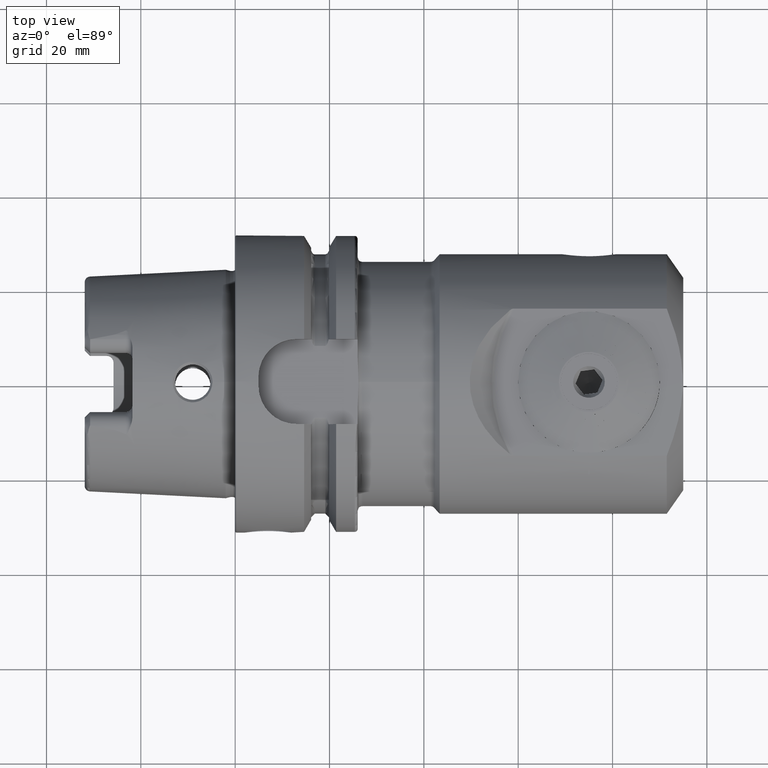
[diagram: clean part render]
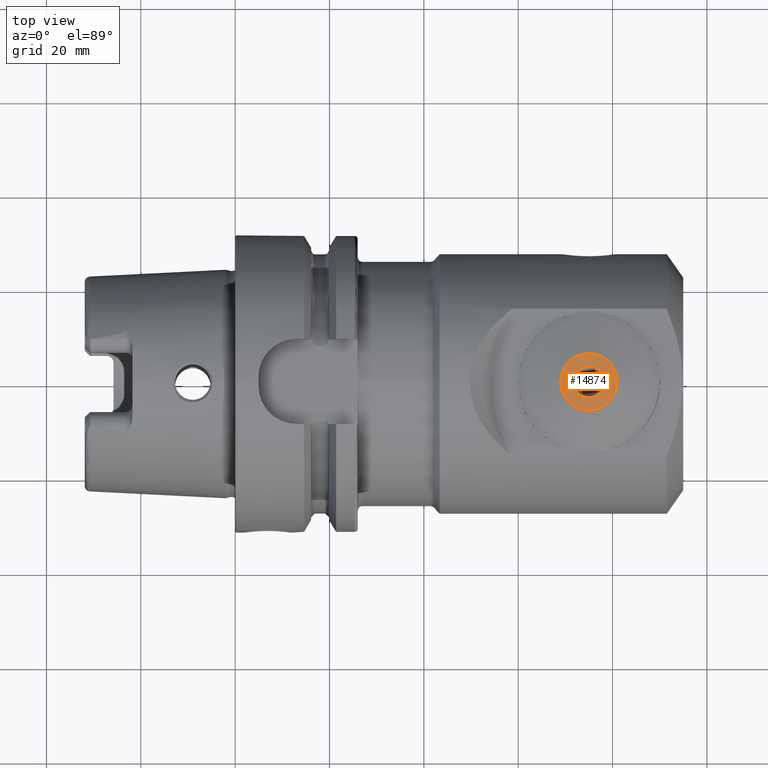
[diagram: same view with one face highlighted and labeled with its STEP entity id]
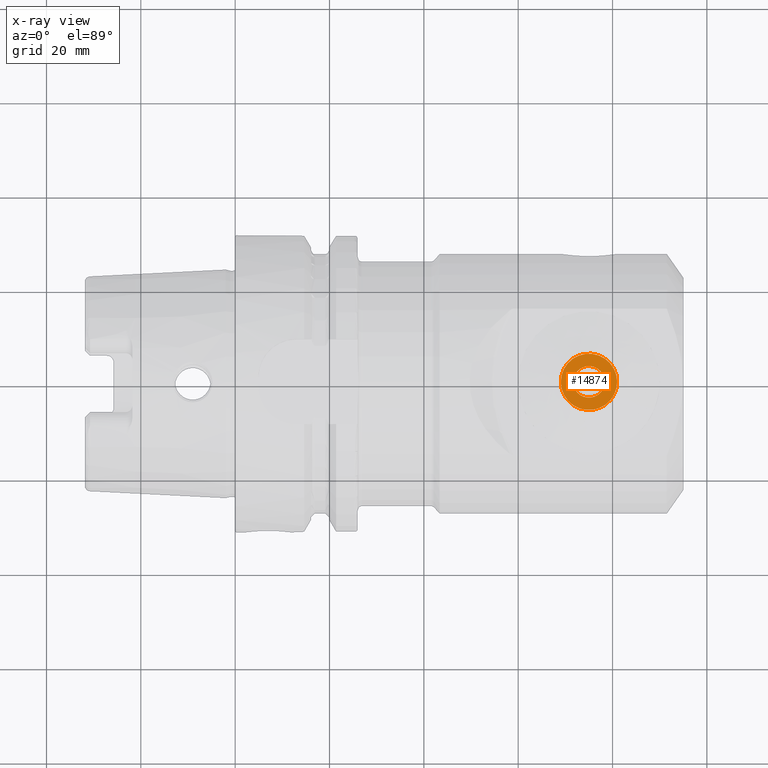
[diagram: x-ray of the same camera — body ghosted, the highlighted face saturated]
A machine part, top view. The second image highlights one B-rep face of the part: STEP entity #14874.
The next image is the same camera in x-ray: the body ghosted, the highlighted face saturated — about 0% of this face is hidden behind the body in this view.
In plain terms, the highlighted planar face has unit normal (-0, -0, -1).
Its self-contained STEP definition (entity closure, byte-faithful):
#1521 = CARTESIAN_POINT ( 'NONE',  ( 0.0000000000000000000, 0.0000000000000000000, 0.0000000000000000000 ) ) ;
#2644 = AXIS2_PLACEMENT_3D ( 'NONE', #11279, #32667, #38432 ) ;
#2902 = EDGE_CURVE ( 'NONE', #26996, #5116, #12320, .T. ) ;
#3836 = CARTESIAN_POINT ( 'NONE',  ( -4.129193800766246400E-032, 4.102566777143634800E-016, -3.350000000000003200 ) ) ;
#4067 = AXIS2_PLACEMENT_3D ( 'NONE', #18089, #39419, #33002 ) ;
#5116 = VERTEX_POINT ( 'NONE', #3836 ) ;
#6323 = CARTESIAN_POINT ( 'NONE',  ( -7.364756107336800400E-032, 7.317264624905446200E-016, -5.974999999999999600 ) ) ;
#6887 = EDGE_LOOP ( 'NONE', ( #29789, #29071 ) ) ;
#7502 = VERTEX_POINT ( 'NONE', #6323 ) ;
#8050 = DIRECTION ( 'NONE',  ( 0.0000000000000000000, 2.273573924062144700E-032, 1.000000000000000000 ) ) ;
#11279 = CARTESIAN_POINT ( 'NONE',  ( 0.0000000000000000000, 0.0000000000000000000, 0.0000000000000000000 ) ) ;
#12320 = CIRCLE ( 'NONE', #2644, 3.350000000000003200 ) ;
#12396 = CIRCLE ( 'NONE', #30753, 3.350000000000003200 ) ;
#14290 = EDGE_LOOP ( 'NONE', ( #34624, #38582 ) ) ;
#14640 = EDGE_CURVE ( 'NONE', #7502, #18615, #21188, .T. ) ;
#14874 = ADVANCED_FACE ( 'NONE', ( #31218, #17861 ), #28361, .F. ) ;
#15620 = DIRECTION ( 'NONE',  ( -1.000000000000000000, -1.972152263052530000E-031, 1.232595164407831200E-032 ) ) ;
#16637 = AXIS2_PLACEMENT_3D ( 'NONE', #22359, #21972, #31309 ) ;
#17861 = FACE_OUTER_BOUND ( 'NONE', #6887, .T. ) ;
#18089 = CARTESIAN_POINT ( 'NONE',  ( 0.0000000000000000000, 0.0000000000000000000, 0.0000000000000000000 ) ) ;
#18615 = VERTEX_POINT ( 'NONE', #34914 ) ;
#20018 = DIRECTION ( 'NONE',  ( -1.000000000000000000, -1.972152263052530000E-031, 1.232595164407831200E-032 ) ) ;
#21188 = CIRCLE ( 'NONE', #21462, 5.975000000000005000 ) ;
#21318 = CARTESIAN_POINT ( 'NONE',  ( 0.0000000000000000000, 0.0000000000000000000, 0.0000000000000000000 ) ) ;
#21462 = AXIS2_PLACEMENT_3D ( 'NONE', #21318, #15620, #33724 ) ;
#21972 = DIRECTION ( 'NONE',  ( 1.000000000000000000, 1.972152263052530000E-031, -4.483833959556379100E-063 ) ) ;
#22359 = CARTESIAN_POINT ( 'NONE',  ( 0.0000000000000000000, 3.349999999999998800, 0.0000000000000000000 ) ) ;
#23160 = EDGE_CURVE ( 'NONE', #18615, #7502, #29528, .T. ) ;
#26996 = VERTEX_POINT ( 'NONE', #27634 ) ;
#27634 = CARTESIAN_POINT ( 'NONE',  ( 4.129193800766238700E-032, 7.616472645608191900E-032, 3.350000000000003200 ) ) ;
#28361 = PLANE ( 'NONE',  #16637 ) ;
#29071 = ORIENTED_EDGE ( 'NONE', *, *, #14640, .T. ) ;
#29528 = CIRCLE ( 'NONE', #4067, 5.975000000000005000 ) ;
#29789 = ORIENTED_EDGE ( 'NONE', *, *, #23160, .T. ) ;
#30753 = AXIS2_PLACEMENT_3D ( 'NONE', #1521, #20018, #8050 ) ;
#31218 = FACE_BOUND ( 'NONE', #14290, .T. ) ;
#31309 = DIRECTION ( 'NONE',  ( 0.0000000000000000000, -2.273573924062144400E-032, -1.000000000000000000 ) ) ;
#32667 = DIRECTION ( 'NONE',  ( -1.000000000000000000, -1.972152263052530000E-031, 1.232595164407831200E-032 ) ) ;
#33002 = DIRECTION ( 'NONE',  ( 0.0000000000000000000, 2.273573924062144700E-032, 1.000000000000000000 ) ) ;
#33724 = DIRECTION ( 'NONE',  ( 0.0000000000000000000, 2.273573924062144700E-032, 1.000000000000000000 ) ) ;
#34168 = EDGE_CURVE ( 'NONE', #5116, #26996, #12396, .T. ) ;
#34624 = ORIENTED_EDGE ( 'NONE', *, *, #2902, .F. ) ;
#34914 = CARTESIAN_POINT ( 'NONE',  ( 0.0000000000000000000, 1.358460419627132600E-031, 5.975000000000005000 ) ) ;
#38432 = DIRECTION ( 'NONE',  ( 0.0000000000000000000, 2.273573924062144700E-032, 1.000000000000000000 ) ) ;
#38582 = ORIENTED_EDGE ( 'NONE', *, *, #34168, .F. ) ;
#39419 = DIRECTION ( 'NONE',  ( -1.000000000000000000, -1.972152263052530000E-031, 1.232595164407831200E-032 ) ) ;